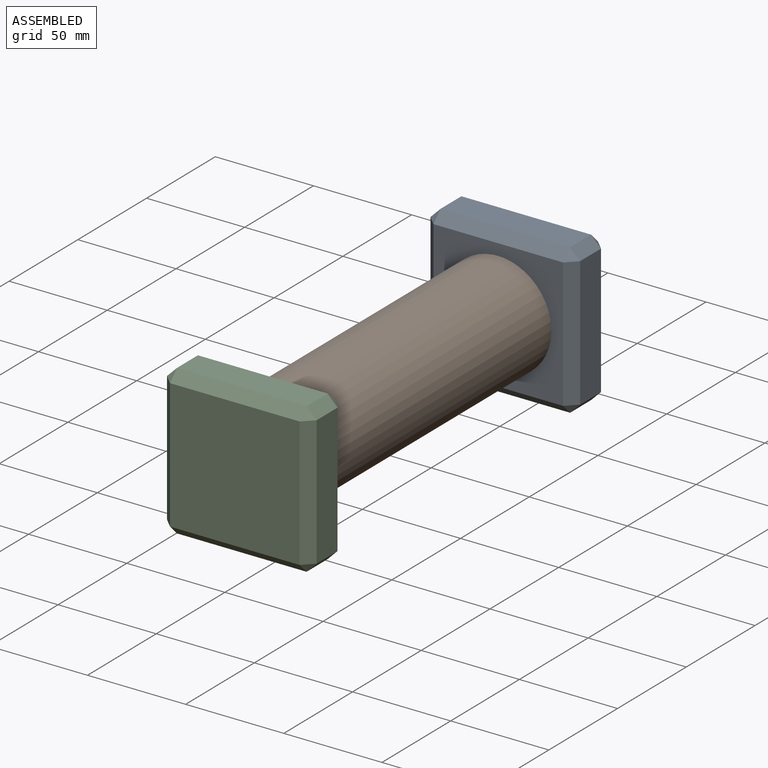
[diagram: assembled view]
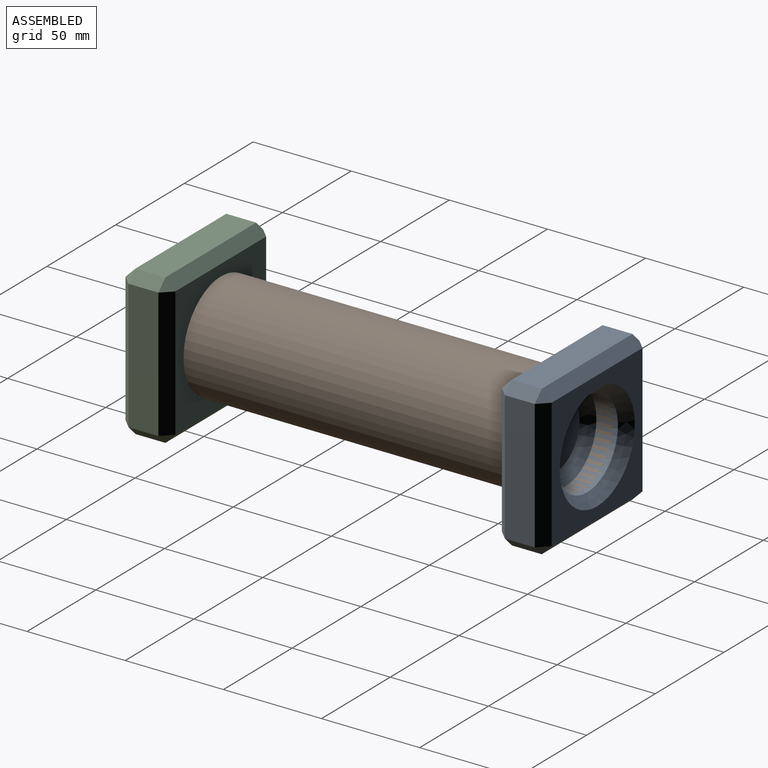
[diagram: assembled view, second angle]
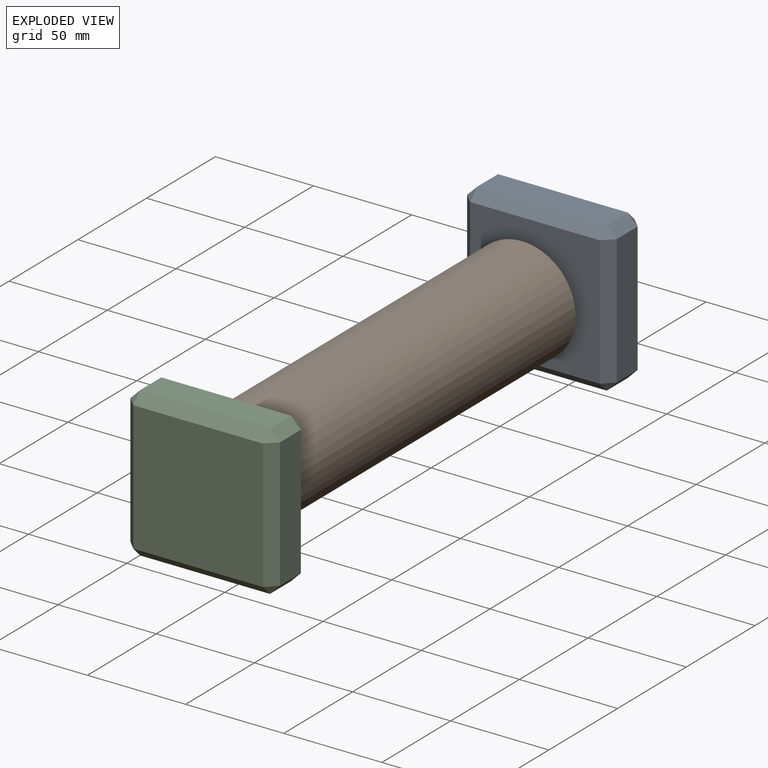
[diagram: exploded view]
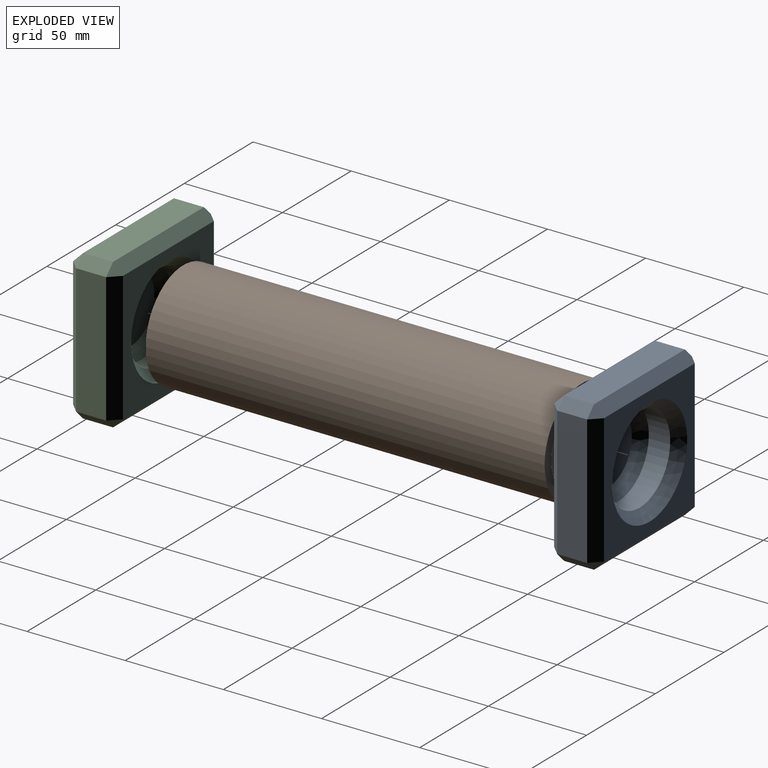
[diagram: exploded view, second angle]
ASSEMBLY  parts=3 mates=2
PART A: 30 faces, bbox 76.2x25.4x76.2 mm
  f0: plane 66.04x15.24mm, normal (-1,0,0), area 1006.4mm2, adj f14,f15,f23,f24
  f1: plane 66.04x15.24mm, normal (0,0,-1), area 1006.4mm2, adj f13,f22,f23,f27
  f2: plane 66.04x15.24mm, normal (1,0,0), area 1006.4mm2, adj f11,f12,f21,f22
  f3: plane 66.04x15.24mm, normal (0,0,1), area 1006.4mm2, adj f8,f11,f15,f16
  f4: plane 66.04x66.04mm, normal (0,-1,0), area 2019mm2, adj f16,f21,f24,f27,f29
  f5: plane 66.04x66.04mm, normal (0,1,0), area 4361.3mm2, adj f8,f12,f13,f14
  f6: cylinder r=22.23mm len=44.45mm, axis (0,-1,0), area 1525.2mm2, adj f28,f29
  f7: plane 34.29x34.29mm, normal (0,-1,0), area 923.5mm2, adj f28
  f8: plane 66.04x5.08mm, normal (0,0.71,0.71), area 474.4mm2, adj f3,f5,f9,f10
  f9: plane 5.08x5.08mm, normal (0.58,0.58,0.58), area 22.3mm2, adj f8,f11,f12
  f10: plane 5.08x5.08mm, normal (-0.58,0.58,0.58), area 22.3mm2, adj f8,f14,f15
  f11: plane 15.24x5.08mm, normal (0.71,0,0.71), area 109.5mm2, adj f2,f3,f9,f17
  f12: plane 66.04x5.08mm, normal (0.71,0.71,0), area 474.4mm2, adj f2,f5,f9,f18
  f13: plane 66.04x5.08mm, normal (0,0.71,-0.71), area 474.4mm2, adj f1,f5,f18,f19
  f14: plane 66.04x5.08mm, normal (-0.71,0.71,0), area 474.4mm2, adj f0,f5,f10,f19
  f15: plane 15.24x5.08mm, normal (-0.71,0,0.71), area 109.5mm2, adj f0,f3,f10,f20
  f16: plane 66.04x5.08mm, normal (0,-0.71,0.71), area 474.4mm2, adj f3,f4,f17,f20
  f17: plane 5.08x5.08mm, normal (0.58,-0.58,0.58), area 22.3mm2, adj f11,f16,f21
  f18: plane 5.08x5.08mm, normal (0.58,0.58,-0.58), area 22.3mm2, adj f12,f13,f22
  f19: plane 5.08x5.08mm, normal (-0.58,0.58,-0.58), area 22.3mm2, adj f13,f14,f23
  f20: plane 5.08x5.08mm, normal (-0.58,-0.58,0.58), area 22.3mm2, adj f15,f16,f24
  f21: plane 66.04x5.08mm, normal (0.71,-0.71,0), area 474.4mm2, adj f2,f4,f17,f25
  f22: plane 15.24x5.08mm, normal (0.71,0,-0.71), area 109.5mm2, adj f1,f2,f18,f25
  f23: plane 15.24x5.08mm, normal (-0.71,0,-0.71), area 109.5mm2, adj f0,f1,f19,f26
  f24: plane 66.04x5.08mm, normal (-0.71,-0.71,0), area 474.4mm2, adj f0,f4,f20,f26
  f25: plane 5.08x5.08mm, normal (0.58,-0.58,-0.58), area 22.3mm2, adj f21,f22,f27
  f26: plane 5.08x5.08mm, normal (-0.58,-0.58,-0.58), area 22.3mm2, adj f23,f24,f27
  f27: plane 66.04x5.08mm, normal (0,-0.71,-0.71), area 474.4mm2, adj f1,f4,f25,f26
  f28: cone r=17.14mm half-angle=45deg, axis (0,-1,0), area 888.6mm2, adj f6,f7
  f29: cone r=22.23mm half-angle=45deg, axis (0,-1,0), area 1117.9mm2, adj f4,f6
PART B: 4 faces, bbox 54.5x203.2x54.5 mm
  f0: cylinder r=27.23mm len=203.2mm, axis (0,1,0), area 34769.7mm2, adj f1,f2
  f1: plane 54.47x54.47mm, normal (0,-1,0), area 778.1mm2, adj f0,f3
  f2: plane 54.47x54.47mm, normal (0,1,0), area 778.1mm2, adj f0,f3
  f3: cylinder r=22.23mm len=203.2mm, axis (0,-1,0), area 28375.6mm2, adj f1,f2
PART C: 30 faces, bbox 76.2x25.4x76.2 mm
  f0: plane 66.04x15.24mm, normal (-1,0,0), area 1006.4mm2, adj f8,f12,f13,f14
  f1: plane 66.04x15.24mm, normal (0,0,-1), area 1006.4mm2, adj f14,f15,f23,f24
  f2: plane 66.04x15.24mm, normal (1,0,0), area 1006.4mm2, adj f16,f21,f24,f27
  f3: plane 66.04x15.24mm, normal (0,0,1), area 1006.4mm2, adj f11,f12,f21,f22
  f4: plane 66.04x66.04mm, normal (0,-1,0), area 2019mm2, adj f8,f11,f15,f16,f29
  f5: plane 66.04x66.04mm, normal (0,1,0), area 4361.3mm2, adj f13,f22,f23,f27
  f6: cylinder r=22.23mm len=44.45mm, axis (0,-1,0), area 1276.9mm2, adj f28,f29
  f7: plane 34.29x34.29mm, normal (0,-1,0), area 923.5mm2, adj f28
  f8: plane 66.04x5.08mm, normal (-0.71,-0.71,0), area 474.4mm2, adj f0,f4,f9,f10
  f9: plane 5.08x5.08mm, normal (-0.58,-0.58,0.58), area 22.3mm2, adj f8,f11,f12
  f10: plane 5.08x5.08mm, normal (-0.58,-0.58,-0.58), area 22.3mm2, adj f8,f14,f15
  f11: plane 66.04x5.08mm, normal (0,-0.71,0.71), area 474.4mm2, adj f3,f4,f9,f17
  f12: plane 15.24x5.08mm, normal (-0.71,0,0.71), area 109.5mm2, adj f0,f3,f9,f18
  f13: plane 66.04x5.08mm, normal (-0.71,0.71,0), area 474.4mm2, adj f0,f5,f18,f19
  f14: plane 15.24x5.08mm, normal (-0.71,0,-0.71), area 109.5mm2, adj f0,f1,f10,f19
  f15: plane 66.04x5.08mm, normal (0,-0.71,-0.71), area 474.4mm2, adj f1,f4,f10,f20
  f16: plane 66.04x5.08mm, normal (0.71,-0.71,0), area 474.4mm2, adj f2,f4,f17,f20
  f17: plane 5.08x5.08mm, normal (0.58,-0.58,0.58), area 22.3mm2, adj f11,f16,f21
  f18: plane 5.08x5.08mm, normal (-0.58,0.58,0.58), area 22.3mm2, adj f12,f13,f22
  f19: plane 5.08x5.08mm, normal (-0.58,0.58,-0.58), area 22.3mm2, adj f13,f14,f23
  f20: plane 5.08x5.08mm, normal (0.58,-0.58,-0.58), area 22.3mm2, adj f15,f16,f24
  f21: plane 15.24x5.08mm, normal (0.71,0,0.71), area 109.5mm2, adj f2,f3,f17,f25
  f22: plane 66.04x5.08mm, normal (0,0.71,0.71), area 474.4mm2, adj f3,f5,f18,f25
  f23: plane 66.04x5.08mm, normal (0,0.71,-0.71), area 474.4mm2, adj f1,f5,f19,f26
  f24: plane 15.24x5.08mm, normal (0.71,0,-0.71), area 109.5mm2, adj f1,f2,f20,f26
  f25: plane 5.08x5.08mm, normal (0.58,0.58,0.58), area 22.3mm2, adj f21,f22,f27
  f26: plane 5.08x5.08mm, normal (0.58,0.58,-0.58), area 22.3mm2, adj f23,f24,f27
  f27: plane 66.04x5.08mm, normal (0.71,0.71,0), area 474.4mm2, adj f2,f5,f25,f26
  f28: cone r=17.14mm half-angle=45deg, axis (0,-1,0), area 888.6mm2, adj f6,f7
  f29: cone r=22.23mm half-angle=45deg, axis (0,-1,0), area 1117.9mm2, adj f4,f6
PLACE A rot(axis=(1,0,0),180deg) t=(49.66,-183.63,67.08)mm
PLACE B rot(axis=(1,0,0),180deg) t=(87.58,-267.64,28.98)mm
PLACE C rot(axis=(1,0,0),180deg) t=(49.66,-375.33,67.08)mm
MATE slider B.f0 <-> A.f6  axis (0,-1,0) through (87.58,-267.64,28.98)mm
MATE slider C.f6 <-> B.f0  axis (0,1,0) through (87.58,-355.01,28.98)mm
